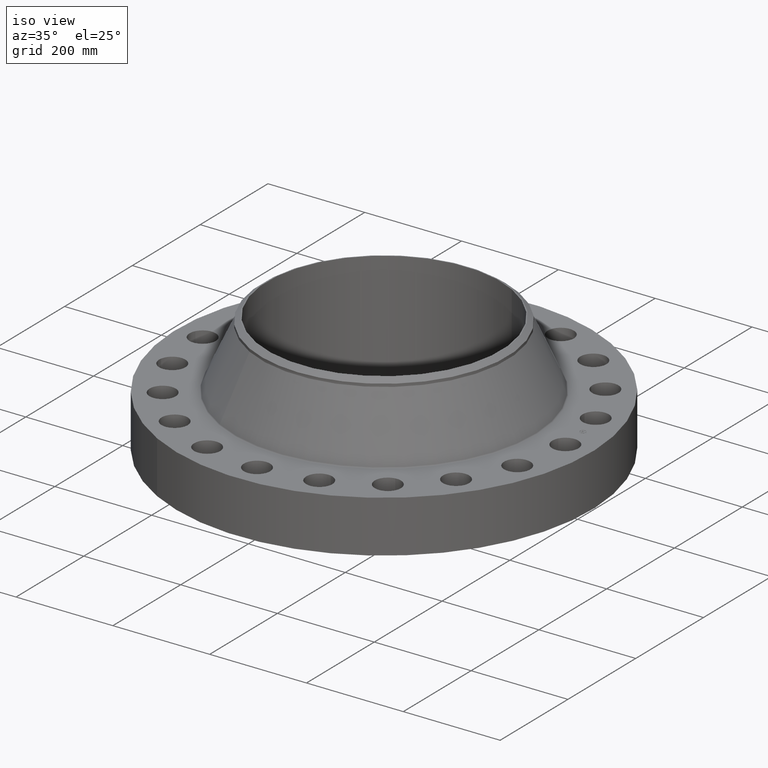
[diagram: clean part render]
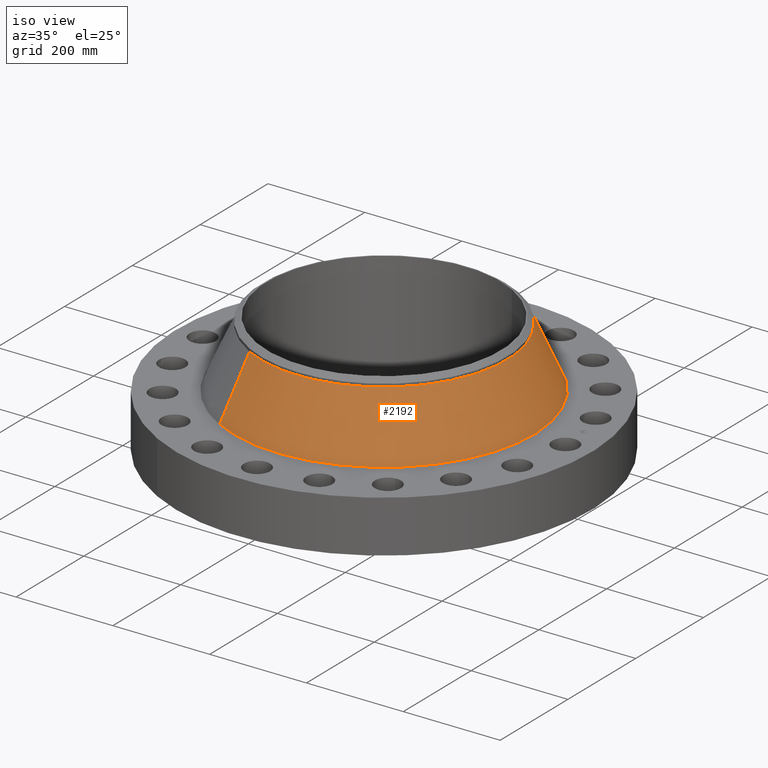
[diagram: same view with one face highlighted and labeled with its STEP entity id]
A machine part, iso view. The second image highlights one B-rep face of the part: STEP entity #2192.
In plain terms, the highlighted conical surface has half-angle 24.485 deg.
Its self-contained STEP definition (entity closure, byte-faithful):
#2011=AXIS2_PLACEMENT_3D('Circle Axis2P3D',#2009,#2010,$) ;
#2179=AXIS2_PLACEMENT_3D('Cone Axis2P3D',#2176,#2177,#2178) ;
#2183=AXIS2_PLACEMENT_3D('Circle Axis2P3D',#2181,#2182,$) ;
#1975=CARTESIAN_POINT('Vertex',(-5.85762134977,-10.7223039592,4.32026484818)) ;
#1982=CARTESIAN_POINT('Vertex',(5.85762134977,10.7223039592,4.32026484819)) ;
#2009=CARTESIAN_POINT('Axis2P3D Location',(0.,0.,4.32026484819)) ;
#2143=CARTESIAN_POINT('Line Origine',(-5.3259383679,-9.74906478903,6.75540016482)) ;
#2147=CARTESIAN_POINT('Vertex',(-4.79425538604,-8.7758256189,9.19053548148)) ;
#2154=CARTESIAN_POINT('Vertex',(4.79425538605,8.77582561891,9.19053548146)) ;
#2157=CARTESIAN_POINT('Line Origine',(5.3259383679,9.74906478903,6.75540016482)) ;
#2176=CARTESIAN_POINT('Axis2P3D Location',(0.,0.,9.19053548148)) ;
#2181=CARTESIAN_POINT('Axis2P3D Location',(0.,0.,9.19053548148)) ;
#2010=DIRECTION('Axis2P3D Direction',(-0.,0.,-0.0393700787402)) ;
#2144=DIRECTION('Vector Direction',(-0.00782293371329,-0.0143197841099,-0.0358294374944)) ;
#2158=DIRECTION('Vector Direction',(0.00782293371329,0.0143197841099,-0.0358294374944)) ;
#2177=DIRECTION('Axis2P3D Direction',(0.,0.,-0.0393700787402)) ;
#2178=DIRECTION('Axis2P3D XDirection',(0.0188750212049,0.0345504945626,0.)) ;
#2182=DIRECTION('Axis2P3D Direction',(-0.,0.,-0.0393700787402)) ;
#2145=VECTOR('Line Direction',#2144,0.0393700787402) ;
#2159=VECTOR('Line Direction',#2158,0.0393700787402) ;
#2187=ORIENTED_EDGE('',*,*,#2013,.F.) ;
#2188=ORIENTED_EDGE('',*,*,#2161,.T.) ;
#2189=ORIENTED_EDGE('',*,*,#2185,.T.) ;
#2190=ORIENTED_EDGE('',*,*,#2149,.F.) ;
#2192=ADVANCED_FACE('PartBody',(#2191),#2180,.T.) ;
#2012=CIRCLE('generated circle',#2011,12.2180002484) ;
#2184=CIRCLE('generated circle',#2183,10.) ;
#2180=CONICAL_SURFACE('Cone',#2179,10.,0.427348919185) ;
#2013=EDGE_CURVE('',#1983,#1976,#2012,.T.) ;
#2149=EDGE_CURVE('',#1976,#2148,#2146,.F.) ;
#2161=EDGE_CURVE('',#1983,#2155,#2160,.F.) ;
#2185=EDGE_CURVE('',#2155,#2148,#2184,.T.) ;
#2186=EDGE_LOOP('',(#2187,#2188,#2189,#2190)) ;
#2191=FACE_OUTER_BOUND('',#2186,.T.) ;
#2146=LINE('Line',#2143,#2145) ;
#2160=LINE('Line',#2157,#2159) ;
#1976=VERTEX_POINT('',#1975) ;
#1983=VERTEX_POINT('',#1982) ;
#2148=VERTEX_POINT('',#2147) ;
#2155=VERTEX_POINT('',#2154) ;